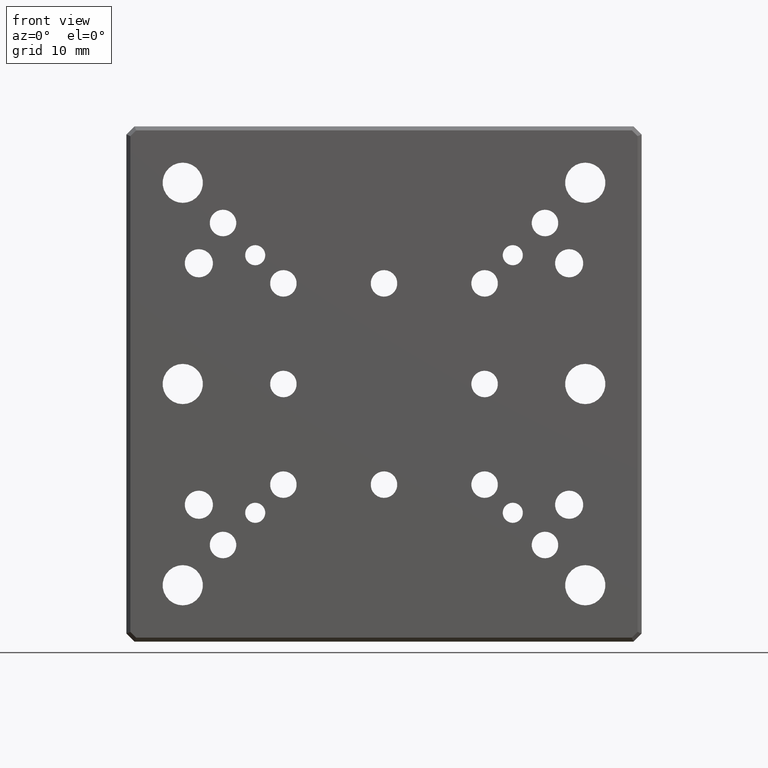
[diagram: clean part render]
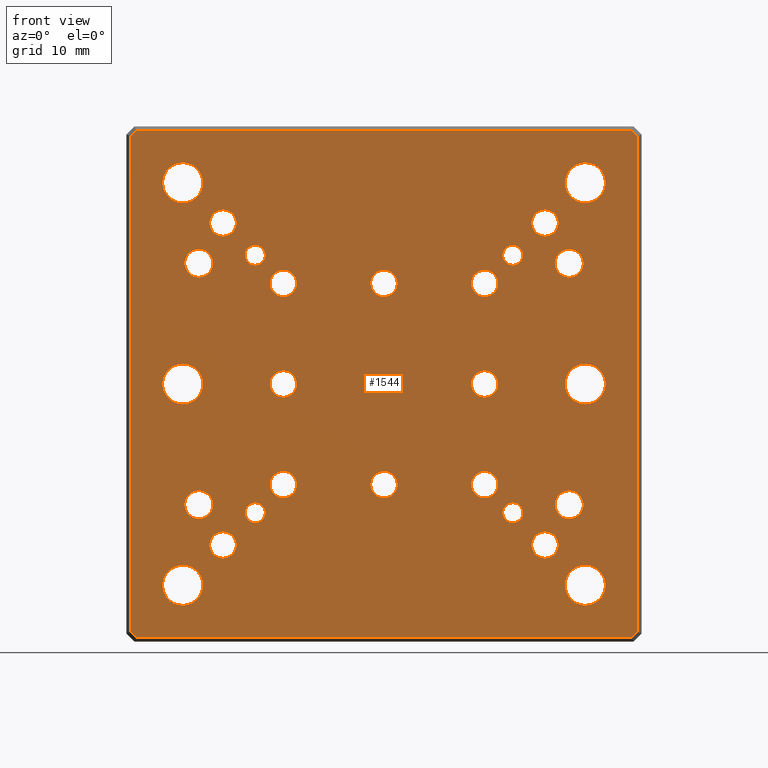
[diagram: same view with one face highlighted and labeled with its STEP entity id]
A machine part, front view. The second image highlights one B-rep face of the part: STEP entity #1544.
In plain terms, the highlighted planar face has unit normal (0, 1, 0).
Its self-contained STEP definition (entity closure, byte-faithful):
#1 = CIRCLE ( 'NONE', #1829, 1.249999999999997558 ) ;
#4 = VERTEX_POINT ( 'NONE', #191 ) ;
#13 = CARTESIAN_POINT ( 'NONE',  ( 12.50000000000000000, 0.000000000000000000, 12.50000000000000000 ) ) ;
#32 = CIRCLE ( 'NONE', #878, 1.649999999999998579 ) ;
#36 = CARTESIAN_POINT ( 'NONE',  ( 23.00000000000000711, 0.000000000000000000, 15.00000000000000178 ) ) ;
#42 = DIRECTION ( 'NONE',  ( -0.000000000000000000, 1.000000000000000000, -0.000000000000000000 ) ) ;
#59 = EDGE_LOOP ( 'NONE', ( #1337 ) ) ;
#61 = VERTEX_POINT ( 'NONE', #1130 ) ;
#68 = CARTESIAN_POINT ( 'NONE',  ( 0.000000000000000000, 0.000000000000000000, 31.50000000000002132 ) ) ;
#86 = AXIS2_PLACEMENT_3D ( 'NONE', #594, #1107, #1825 ) ;
#92 = CARTESIAN_POINT ( 'NONE',  ( 30.79289321881346098, 0.000000000000000000, -31.50000000000001421 ) ) ;
#94 = EDGE_CURVE ( 'NONE', #182, #182, #216, .T. ) ;
#100 = CARTESIAN_POINT ( 'NONE',  ( 12.49999999999999822, 0.000000000000000000, 0.000000000000000000 ) ) ;
#115 = DIRECTION ( 'NONE',  ( -0.000000000000000000, 1.000000000000000000, -0.000000000000000000 ) ) ;
#122 = DIRECTION ( 'NONE',  ( 0.000000000000000000, 1.000000000000000000, 0.000000000000000000 ) ) ;
#123 = CIRCLE ( 'NONE', #1515, 2.499999999999998668 ) ;
#126 = CARTESIAN_POINT ( 'NONE',  ( 24.99999999999999289, 0.000000000000000000, -24.99999999999999645 ) ) ;
#132 = EDGE_CURVE ( 'NONE', #490, #2126, #1866, .T. ) ;
#165 = VERTEX_POINT ( 'NONE', #545 ) ;
#182 = VERTEX_POINT ( 'NONE', #2104 ) ;
#184 = DIRECTION ( 'NONE',  ( 0.000000000000000000, 0.000000000000000000, 1.000000000000000000 ) ) ;
#191 = CARTESIAN_POINT ( 'NONE',  ( -12.50000000000000000, 0.000000000000000000, 14.14999999999999858 ) ) ;
#195 = EDGE_LOOP ( 'NONE', ( #437 ) ) ;
#196 = VERTEX_POINT ( 'NONE', #729 ) ;
#208 = ORIENTED_EDGE ( 'NONE', *, *, #1801, .T. ) ;
#212 = AXIS2_PLACEMENT_3D ( 'NONE', #1908, #1932, #1739 ) ;
#216 = CIRCLE ( 'NONE', #1416, 1.249999999999997558 ) ;
#227 = EDGE_LOOP ( 'NONE', ( #2073 ) ) ;
#234 = VERTEX_POINT ( 'NONE', #1462 ) ;
#250 = DIRECTION ( 'NONE',  ( -0.000000000000000000, 1.000000000000000000, -0.000000000000000000 ) ) ;
#258 = FACE_BOUND ( 'NONE', #850, .T. ) ;
#263 = ORIENTED_EDGE ( 'NONE', *, *, #1556, .T. ) ;
#265 = FACE_BOUND ( 'NONE', #1520, .T. ) ;
#274 = DIRECTION ( 'NONE',  ( -0.7071067811865500152, 0.000000000000000000, 0.7071067811865451302 ) ) ;
#291 = AXIS2_PLACEMENT_3D ( 'NONE', #964, #1315, #1506 ) ;
#292 = FACE_BOUND ( 'NONE', #2268, .T. ) ;
#296 = DIRECTION ( 'NONE',  ( -2.168404344971008868E-16, 0.000000000000000000, -1.000000000000000000 ) ) ;
#304 = AXIS2_PLACEMENT_3D ( 'NONE', #1077, #2178, #1283 ) ;
#307 = CARTESIAN_POINT ( 'NONE',  ( -25.00000000000000711, 0.000000000000000000, -24.99999999999999645 ) ) ;
#315 = DIRECTION ( 'NONE',  ( -0.000000000000000000, 1.000000000000000000, -0.000000000000000000 ) ) ;
#318 = EDGE_LOOP ( 'NONE', ( #2272 ) ) ;
#320 = CARTESIAN_POINT ( 'NONE',  ( 24.99999999999999645, 0.000000000000000000, 2.500000000000002220 ) ) ;
#324 = CARTESIAN_POINT ( 'NONE',  ( 31.50000000000001421, 0.000000000000000000, -30.79289321881346808 ) ) ;
#331 = VERTEX_POINT ( 'NONE', #879 ) ;
#343 = CARTESIAN_POINT ( 'NONE',  ( 25.00000000000000000, 0.000000000000000000, 27.50000000000000355 ) ) ;
#363 = DIRECTION ( 'NONE',  ( 0.000000000000000000, 0.000000000000000000, 1.000000000000000000 ) ) ;
#370 = EDGE_LOOP ( 'NONE', ( #263 ) ) ;
#380 = DIRECTION ( 'NONE',  ( 1.000000000000000000, 0.000000000000000000, -1.084202172485504434E-16 ) ) ;
#384 = CARTESIAN_POINT ( 'NONE',  ( 20.00000000000000000, 0.000000000000000000, 21.64999999999999858 ) ) ;
#391 = EDGE_CURVE ( 'NONE', #2197, #2197, #765, .T. ) ;
#413 = CIRCLE ( 'NONE', #2088, 2.499999999999998668 ) ;
#421 = AXIS2_PLACEMENT_3D ( 'NONE', #1678, #122, #831 ) ;
#437 = ORIENTED_EDGE ( 'NONE', *, *, #1211, .T. ) ;
#440 = FACE_BOUND ( 'NONE', #712, .T. ) ;
#444 = DIRECTION ( 'NONE',  ( 0.000000000000000000, 0.000000000000000000, 1.000000000000000000 ) ) ;
#449 = EDGE_CURVE ( 'NONE', #1735, #2156, #1079, .T. ) ;
#452 = CARTESIAN_POINT ( 'NONE',  ( 19.99999999999999289, 0.000000000000000000, -20.00000000000000000 ) ) ;
#455 = CIRCLE ( 'NONE', #86, 1.750000000000011990 ) ;
#458 = FACE_BOUND ( 'NONE', #2286, .T. ) ;
#468 = EDGE_CURVE ( 'NONE', #1301, #1301, #1555, .T. ) ;
#470 = FACE_BOUND ( 'NONE', #1435, .T. ) ;
#484 = CARTESIAN_POINT ( 'NONE',  ( 12.49999999999999645, 0.000000000000000000, -12.50000000000000000 ) ) ;
#487 = DIRECTION ( 'NONE',  ( 0.000000000000000000, 0.000000000000000000, 1.000000000000000000 ) ) ;
#490 = VERTEX_POINT ( 'NONE', #904 ) ;
#493 = VECTOR ( 'NONE', #1851, 1000.000000000000000 ) ;
#513 = EDGE_CURVE ( 'NONE', #196, #196, #1734, .T. ) ;
#527 = CARTESIAN_POINT ( 'NONE',  ( -31.50000000000001421, 0.000000000000000000, -30.79289321881343611 ) ) ;
#534 = VERTEX_POINT ( 'NONE', #1417 ) ;
#545 = CARTESIAN_POINT ( 'NONE',  ( -25.00000000000000711, 0.000000000000000000, -22.50000000000000000 ) ) ;
#547 = VECTOR ( 'NONE', #296, 1000.000000000000000 ) ;
#548 = ORIENTED_EDGE ( 'NONE', *, *, #1322, .T. ) ;
#559 = EDGE_CURVE ( 'NONE', #2156, #2236, #1021, .T. ) ;
#571 = CARTESIAN_POINT ( 'NONE',  ( 24.99999999999999645, 0.000000000000000000, 3.469446951953614189E-15 ) ) ;
#594 = CARTESIAN_POINT ( 'NONE',  ( 23.00000000000000000, 0.000000000000000000, -15.00000000000000000 ) ) ;
#600 = LINE ( 'NONE', #2023, #855 ) ;
#604 = CIRCLE ( 'NONE', #973, 2.499999999999998668 ) ;
#605 = DIRECTION ( 'NONE',  ( 0.000000000000000000, 0.000000000000000000, 1.000000000000000000 ) ) ;
#617 = CIRCLE ( 'NONE', #906, 1.649999999999998579 ) ;
#619 = EDGE_CURVE ( 'NONE', #2185, #2185, #1234, .T. ) ;
#630 = CIRCLE ( 'NONE', #1042, 1.649999999999998579 ) ;
#636 = FACE_BOUND ( 'NONE', #1285, .T. ) ;
#644 = CIRCLE ( 'NONE', #1612, 1.649999999999998579 ) ;
#647 = FACE_BOUND ( 'NONE', #1613, .T. ) ;
#649 = LINE ( 'NONE', #801, #1054 ) ;
#654 = CARTESIAN_POINT ( 'NONE',  ( 30.64644660940673049, 0.000000000000000000, 31.64644660940674115 ) ) ;
#657 = EDGE_LOOP ( 'NONE', ( #977 ) ) ;
#664 = VERTEX_POINT ( 'NONE', #1279 ) ;
#665 = EDGE_LOOP ( 'NONE', ( #779 ) ) ;
#672 = CARTESIAN_POINT ( 'NONE',  ( -3.469446951953614189E-15, 0.000000000000000000, -12.50000000000000000 ) ) ;
#680 = VERTEX_POINT ( 'NONE', #1404 ) ;
#685 = EDGE_CURVE ( 'NONE', #1111, #1111, #1005, .T. ) ;
#699 = DIRECTION ( 'NONE',  ( 0.000000000000000000, 0.000000000000000000, 1.000000000000000000 ) ) ;
#711 = VERTEX_POINT ( 'NONE', #1770 ) ;
#712 = EDGE_LOOP ( 'NONE', ( #548 ) ) ;
#717 = VERTEX_POINT ( 'NONE', #324 ) ;
#720 = EDGE_CURVE ( 'NONE', #947, #947, #630, .T. ) ;
#727 = AXIS2_PLACEMENT_3D ( 'NONE', #36, #1796, #363 ) ;
#729 = CARTESIAN_POINT ( 'NONE',  ( 24.99999999999999289, 0.000000000000000000, -22.50000000000000000 ) ) ;
#752 = CARTESIAN_POINT ( 'NONE',  ( -3.415236843329340545E-15, 0.000000000000000000, -31.50000000000001421 ) ) ;
#758 = ORIENTED_EDGE ( 'NONE', *, *, #966, .T. ) ;
#761 = DIRECTION ( 'NONE',  ( -0.000000000000000000, 1.000000000000000000, -0.000000000000000000 ) ) ;
#765 = CIRCLE ( 'NONE', #2042, 1.649999999999998579 ) ;
#770 = ORIENTED_EDGE ( 'NONE', *, *, #1428, .T. ) ;
#776 = CARTESIAN_POINT ( 'NONE',  ( -23.00000000000000000, 0.000000000000000000, -14.99999999999999822 ) ) ;
#779 = ORIENTED_EDGE ( 'NONE', *, *, #720, .T. ) ;
#781 = DIRECTION ( 'NONE',  ( -0.000000000000000000, 1.000000000000000000, -0.000000000000000000 ) ) ;
#801 = CARTESIAN_POINT ( 'NONE',  ( 31.64644660940674115, 0.000000000000000000, -30.64644660940674470 ) ) ;
#806 = AXIS2_PLACEMENT_3D ( 'NONE', #1052, #1007, #1716 ) ;
#812 = FACE_BOUND ( 'NONE', #1804, .T. ) ;
#831 = DIRECTION ( 'NONE',  ( 0.000000000000000000, -0.000000000000000000, 1.000000000000000000 ) ) ;
#849 = ORIENTED_EDGE ( 'NONE', *, *, #1491, .T. ) ;
#850 = EDGE_LOOP ( 'NONE', ( #1969 ) ) ;
#855 = VECTOR ( 'NONE', #1137, 1000.000000000000000 ) ;
#858 = CARTESIAN_POINT ( 'NONE',  ( 16.00000000000000000, 0.000000000000000000, -16.00000000000000000 ) ) ;
#859 = CARTESIAN_POINT ( 'NONE',  ( -16.00000000000000000, 0.000000000000000000, -14.75000000000000178 ) ) ;
#868 = CARTESIAN_POINT ( 'NONE',  ( 16.00000000000001066, 0.000000000000000000, 17.24999999999999645 ) ) ;
#874 = CARTESIAN_POINT ( 'NONE',  ( -12.50000000000000178, 0.000000000000000000, 0.000000000000000000 ) ) ;
#878 = AXIS2_PLACEMENT_3D ( 'NONE', #1243, #1050, #1621 ) ;
#879 = CARTESIAN_POINT ( 'NONE',  ( 19.99999999999999289, 0.000000000000000000, -18.35000000000000142 ) ) ;
#880 = EDGE_CURVE ( 'NONE', #1827, #1827, #32, .T. ) ;
#891 = EDGE_LOOP ( 'NONE', ( #849 ) ) ;
#900 = CARTESIAN_POINT ( 'NONE',  ( 12.50000000000000000, 0.000000000000000000, 14.14999999999999858 ) ) ;
#904 = CARTESIAN_POINT ( 'NONE',  ( 31.50000000000002842, 0.000000000000000000, 30.79289321881345032 ) ) ;
#906 = AXIS2_PLACEMENT_3D ( 'NONE', #1904, #1940, #2117 ) ;
#941 = DIRECTION ( 'NONE',  ( 0.000000000000000000, 0.000000000000000000, 1.000000000000000000 ) ) ;
#947 = VERTEX_POINT ( 'NONE', #2009 ) ;
#960 = FACE_BOUND ( 'NONE', #1202, .T. ) ;
#961 = EDGE_CURVE ( 'NONE', #664, #664, #413, .T. ) ;
#964 = CARTESIAN_POINT ( 'NONE',  ( 25.00000000000000000, 0.000000000000000000, 25.00000000000000355 ) ) ;
#966 = EDGE_CURVE ( 'NONE', #1302, #1302, #2310, .T. ) ;
#970 = CARTESIAN_POINT ( 'NONE',  ( -30.79289321881344321, 0.000000000000000000, 31.50000000000002132 ) ) ;
#971 = EDGE_CURVE ( 'NONE', #1059, #1059, #1311, .T. ) ;
#973 = AXIS2_PLACEMENT_3D ( 'NONE', #571, #1978, #1095 ) ;
#974 = FACE_BOUND ( 'NONE', #227, .T. ) ;
#977 = ORIENTED_EDGE ( 'NONE', *, *, #94, .T. ) ;
#986 = FACE_BOUND ( 'NONE', #1715, .T. ) ;
#987 = ORIENTED_EDGE ( 'NONE', *, *, #2214, .T. ) ;
#993 = CIRCLE ( 'NONE', #212, 1.649999999999998579 ) ;
#1005 = CIRCLE ( 'NONE', #2313, 1.649999999999998579 ) ;
#1007 = DIRECTION ( 'NONE',  ( -0.000000000000000000, 1.000000000000000000, -0.000000000000000000 ) ) ;
#1009 = FACE_OUTER_BOUND ( 'NONE', #1074, .T. ) ;
#1014 = DIRECTION ( 'NONE',  ( -0.000000000000000000, 1.000000000000000000, -0.000000000000000000 ) ) ;
#1021 = LINE ( 'NONE', #1732, #547 ) ;
#1026 = DIRECTION ( 'NONE',  ( 0.000000000000000000, 0.000000000000000000, 1.000000000000000000 ) ) ;
#1042 = AXIS2_PLACEMENT_3D ( 'NONE', #672, #1014, #487 ) ;
#1047 = CARTESIAN_POINT ( 'NONE',  ( 0.000000000000000000, 0.000000000000000000, 14.14999999999999858 ) ) ;
#1050 = DIRECTION ( 'NONE',  ( -0.000000000000000000, 1.000000000000000000, -0.000000000000000000 ) ) ;
#1052 = CARTESIAN_POINT ( 'NONE',  ( 0.000000000000000000, 0.000000000000000000, 12.50000000000000000 ) ) ;
#1054 = VECTOR ( 'NONE', #1210, 1000.000000000000000 ) ;
#1057 = DIRECTION ( 'NONE',  ( 0.000000000000000000, 0.000000000000000000, 1.000000000000000000 ) ) ;
#1059 = VERTEX_POINT ( 'NONE', #343 ) ;
#1074 = EDGE_LOOP ( 'NONE', ( #1843, #1907, #1899, #2279, #987, #2209, #1176, #2024 ) ) ;
#1077 = CARTESIAN_POINT ( 'NONE',  ( -12.50000000000000000, 0.000000000000000000, 12.50000000000000000 ) ) ;
#1079 = LINE ( 'NONE', #1091, #2154 ) ;
#1084 = CARTESIAN_POINT ( 'NONE',  ( 16.00000000000001066, 0.000000000000000000, 16.00000000000000000 ) ) ;
#1091 = CARTESIAN_POINT ( 'NONE',  ( -31.64644660940671983, 0.000000000000000000, 30.64644660940674470 ) ) ;
#1094 = VECTOR ( 'NONE', #380, 1000.000000000000000 ) ;
#1095 = DIRECTION ( 'NONE',  ( 0.000000000000000000, 0.000000000000000000, 1.000000000000000000 ) ) ;
#1099 = CARTESIAN_POINT ( 'NONE',  ( -23.00000000000000000, 0.000000000000000000, -13.24999999999998579 ) ) ;
#1107 = DIRECTION ( 'NONE',  ( -0.000000000000000000, 1.000000000000000000, -0.000000000000000000 ) ) ;
#1111 = VERTEX_POINT ( 'NONE', #384 ) ;
#1120 = CARTESIAN_POINT ( 'NONE',  ( -12.50000000000000178, 0.000000000000000000, 1.649999999999998579 ) ) ;
#1130 = CARTESIAN_POINT ( 'NONE',  ( -15.99999999999999645, 0.000000000000000000, 17.25000000000000000 ) ) ;
#1132 = DIRECTION ( 'NONE',  ( 0.000000000000000000, 0.000000000000000000, 1.000000000000000000 ) ) ;
#1137 = DIRECTION ( 'NONE',  ( 2.168404344971008868E-16, 0.000000000000000000, 1.000000000000000000 ) ) ;
#1141 = VERTEX_POINT ( 'NONE', #1120 ) ;
#1143 = FACE_BOUND ( 'NONE', #59, .T. ) ;
#1144 = EDGE_CURVE ( 'NONE', #165, #165, #123, .T. ) ;
#1157 = EDGE_CURVE ( 'NONE', #711, #711, #1325, .T. ) ;
#1163 = FACE_BOUND ( 'NONE', #370, .T. ) ;
#1174 = FACE_BOUND ( 'NONE', #1399, .T. ) ;
#1176 = ORIENTED_EDGE ( 'NONE', *, *, #2061, .T. ) ;
#1184 = ORIENTED_EDGE ( 'NONE', *, *, #391, .T. ) ;
#1197 = EDGE_CURVE ( 'NONE', #2200, #717, #649, .T. ) ;
#1202 = EDGE_LOOP ( 'NONE', ( #1992 ) ) ;
#1210 = DIRECTION ( 'NONE',  ( 0.7071067811865524577, 0.000000000000000000, 0.7071067811865426878 ) ) ;
#1211 = EDGE_CURVE ( 'NONE', #331, #331, #644, .T. ) ;
#1218 = ORIENTED_EDGE ( 'NONE', *, *, #468, .T. ) ;
#1223 = ORIENTED_EDGE ( 'NONE', *, *, #2107, .T. ) ;
#1225 = VERTEX_POINT ( 'NONE', #1047 ) ;
#1234 = CIRCLE ( 'NONE', #2205, 1.649999999999998579 ) ;
#1243 = CARTESIAN_POINT ( 'NONE',  ( -20.00000000000000711, 0.000000000000000000, -20.00000000000000000 ) ) ;
#1247 = AXIS2_PLACEMENT_3D ( 'NONE', #1663, #250, #941 ) ;
#1250 = DIRECTION ( 'NONE',  ( -0.000000000000000000, 1.000000000000000000, -0.000000000000000000 ) ) ;
#1257 = DIRECTION ( 'NONE',  ( 0.7071067811865474617, 0.000000000000000000, -0.7071067811865474617 ) ) ;
#1264 = VECTOR ( 'NONE', #274, 1000.000000000000114 ) ;
#1279 = CARTESIAN_POINT ( 'NONE',  ( -25.00000000000000355, 0.000000000000000000, 2.500000000000002220 ) ) ;
#1283 = DIRECTION ( 'NONE',  ( 0.000000000000000000, 0.000000000000000000, 1.000000000000000000 ) ) ;
#1285 = EDGE_LOOP ( 'NONE', ( #1741 ) ) ;
#1301 = VERTEX_POINT ( 'NONE', #2208 ) ;
#1302 = VERTEX_POINT ( 'NONE', #1099 ) ;
#1303 = DIRECTION ( 'NONE',  ( -0.000000000000000000, 1.000000000000000000, -0.000000000000000000 ) ) ;
#1311 = CIRCLE ( 'NONE', #291, 2.499999999999998668 ) ;
#1315 = DIRECTION ( 'NONE',  ( -0.000000000000000000, 1.000000000000000000, -0.000000000000000000 ) ) ;
#1319 = AXIS2_PLACEMENT_3D ( 'NONE', #100, #1360, #605 ) ;
#1322 = EDGE_CURVE ( 'NONE', #4, #4, #1797, .T. ) ;
#1324 = FACE_BOUND ( 'NONE', #2159, .T. ) ;
#1325 = CIRCLE ( 'NONE', #1658, 1.750000000000013767 ) ;
#1328 = CARTESIAN_POINT ( 'NONE',  ( -25.00000000000000355, 0.000000000000000000, 3.469446951953614189E-15 ) ) ;
#1331 = DIRECTION ( 'NONE',  ( 0.000000000000000000, 0.000000000000000000, 1.000000000000000000 ) ) ;
#1336 = FACE_BOUND ( 'NONE', #318, .T. ) ;
#1337 = ORIENTED_EDGE ( 'NONE', *, *, #2290, .T. ) ;
#1340 = AXIS2_PLACEMENT_3D ( 'NONE', #2094, #315, #1026 ) ;
#1348 = FACE_BOUND ( 'NONE', #2181, .T. ) ;
#1351 = DIRECTION ( 'NONE',  ( 0.000000000000000000, 0.000000000000000000, 1.000000000000000000 ) ) ;
#1360 = DIRECTION ( 'NONE',  ( -0.000000000000000000, 1.000000000000000000, -0.000000000000000000 ) ) ;
#1362 = DIRECTION ( 'NONE',  ( -0.000000000000000000, 1.000000000000000000, -0.000000000000000000 ) ) ;
#1364 = CARTESIAN_POINT ( 'NONE',  ( -31.50000000000000000, 0.000000000000000000, 30.79289321881346453 ) ) ;
#1371 = VECTOR ( 'NONE', #1257, 1000.000000000000114 ) ;
#1387 = EDGE_CURVE ( 'NONE', #2134, #2200, #2194, .T. ) ;
#1394 = EDGE_CURVE ( 'NONE', #534, #534, #455, .T. ) ;
#1399 = EDGE_LOOP ( 'NONE', ( #1184 ) ) ;
#1404 = CARTESIAN_POINT ( 'NONE',  ( -20.00000000000000000, 0.000000000000000000, 21.64999999999999858 ) ) ;
#1415 = DIRECTION ( 'NONE',  ( -0.000000000000000000, 1.000000000000000000, -0.000000000000000000 ) ) ;
#1416 = AXIS2_PLACEMENT_3D ( 'NONE', #858, #1415, #699 ) ;
#1417 = CARTESIAN_POINT ( 'NONE',  ( 23.00000000000000000, 0.000000000000000000, -13.24999999999998757 ) ) ;
#1428 = EDGE_CURVE ( 'NONE', #1440, #1440, #1, .T. ) ;
#1435 = EDGE_LOOP ( 'NONE', ( #1671 ) ) ;
#1440 = VERTEX_POINT ( 'NONE', #868 ) ;
#1444 = DIRECTION ( 'NONE',  ( -0.000000000000000000, 1.000000000000000000, -0.000000000000000000 ) ) ;
#1457 = DIRECTION ( 'NONE',  ( 0.000000000000000000, 0.000000000000000000, 1.000000000000000000 ) ) ;
#1462 = CARTESIAN_POINT ( 'NONE',  ( -12.50000000000000355, 0.000000000000000000, -10.85000000000000142 ) ) ;
#1491 = EDGE_CURVE ( 'NONE', #1925, #1925, #604, .T. ) ;
#1506 = DIRECTION ( 'NONE',  ( 0.000000000000000000, 0.000000000000000000, 1.000000000000000000 ) ) ;
#1511 = EDGE_LOOP ( 'NONE', ( #1783 ) ) ;
#1515 = AXIS2_PLACEMENT_3D ( 'NONE', #307, #1914, #1540 ) ;
#1520 = EDGE_LOOP ( 'NONE', ( #2143 ) ) ;
#1535 = CARTESIAN_POINT ( 'NONE',  ( -30.79289321881343966, 0.000000000000000000, -31.50000000000000711 ) ) ;
#1540 = DIRECTION ( 'NONE',  ( 0.000000000000000000, 0.000000000000000000, 1.000000000000000000 ) ) ;
#1541 = AXIS2_PLACEMENT_3D ( 'NONE', #874, #1775, #184 ) ;
#1544 = ADVANCED_FACE ( 'NONE', ( #458, #2229, #647, #292, #1550, #2240, #265, #1324, #440, #1143, #636, #1174, #1163, #1348, #1847, #1869, #812, #470, #1687, #974, #1336, #986, #258, #2253, #960, #1718, #1009 ), #1699, .F. ) ;
#1550 = FACE_BOUND ( 'NONE', #2086, .T. ) ;
#1553 = CARTESIAN_POINT ( 'NONE',  ( -23.00000000000000000, 0.000000000000000000, 15.00000000000000178 ) ) ;
#1555 = CIRCLE ( 'NONE', #727, 1.750000000000013767 ) ;
#1556 = EDGE_CURVE ( 'NONE', #1937, #1937, #2211, .T. ) ;
#1563 = CARTESIAN_POINT ( 'NONE',  ( -25.00000000000000000, 0.000000000000000000, 27.50000000000000355 ) ) ;
#1612 = AXIS2_PLACEMENT_3D ( 'NONE', #452, #2244, #1702 ) ;
#1613 = EDGE_LOOP ( 'NONE', ( #770 ) ) ;
#1621 = DIRECTION ( 'NONE',  ( 0.000000000000000000, 0.000000000000000000, 1.000000000000000000 ) ) ;
#1623 = EDGE_CURVE ( 'NONE', #1966, #1966, #2135, .T. ) ;
#1653 = LINE ( 'NONE', #1807, #1371 ) ;
#1658 = AXIS2_PLACEMENT_3D ( 'NONE', #1553, #1362, #1351 ) ;
#1663 = CARTESIAN_POINT ( 'NONE',  ( -15.99999999999999645, 0.000000000000000000, 16.00000000000000000 ) ) ;
#1670 = CIRCLE ( 'NONE', #1340, 1.249999999999999334 ) ;
#1671 = ORIENTED_EDGE ( 'NONE', *, *, #1157, .T. ) ;
#1676 = ORIENTED_EDGE ( 'NONE', *, *, #1623, .T. ) ;
#1678 = CARTESIAN_POINT ( 'NONE',  ( 0.000000000000000000, 0.000000000000000000, 0.000000000000000000 ) ) ;
#1683 = CARTESIAN_POINT ( 'NONE',  ( 20.00000000000000000, 0.000000000000000000, 20.00000000000000000 ) ) ;
#1687 = FACE_BOUND ( 'NONE', #1833, .T. ) ;
#1699 = PLANE ( 'NONE',  #421 ) ;
#1702 = DIRECTION ( 'NONE',  ( 0.000000000000000000, 0.000000000000000000, 1.000000000000000000 ) ) ;
#1711 = AXIS2_PLACEMENT_3D ( 'NONE', #776, #42, #2032 ) ;
#1715 = EDGE_LOOP ( 'NONE', ( #2196 ) ) ;
#1716 = DIRECTION ( 'NONE',  ( 0.000000000000000000, 0.000000000000000000, 1.000000000000000000 ) ) ;
#1717 = AXIS2_PLACEMENT_3D ( 'NONE', #1935, #1250, #1057 ) ;
#1718 = FACE_BOUND ( 'NONE', #891, .T. ) ;
#1732 = CARTESIAN_POINT ( 'NONE',  ( -31.50000000000000711, 0.000000000000000000, 6.830473686658679512E-15 ) ) ;
#1734 = CIRCLE ( 'NONE', #1881, 2.499999999999998668 ) ;
#1735 = VERTEX_POINT ( 'NONE', #970 ) ;
#1739 = DIRECTION ( 'NONE',  ( 0.000000000000000000, 0.000000000000000000, 1.000000000000000000 ) ) ;
#1741 = ORIENTED_EDGE ( 'NONE', *, *, #619, .T. ) ;
#1752 = VERTEX_POINT ( 'NONE', #859 ) ;
#1770 = CARTESIAN_POINT ( 'NONE',  ( -23.00000000000000000, 0.000000000000000000, 16.75000000000001421 ) ) ;
#1775 = DIRECTION ( 'NONE',  ( -0.000000000000000000, 1.000000000000000000, -0.000000000000000000 ) ) ;
#1782 = EDGE_CURVE ( 'NONE', #680, #680, #993, .T. ) ;
#1783 = ORIENTED_EDGE ( 'NONE', *, *, #1786, .T. ) ;
#1786 = EDGE_CURVE ( 'NONE', #1225, #1225, #2190, .T. ) ;
#1794 = ORIENTED_EDGE ( 'NONE', *, *, #2039, .T. ) ;
#1796 = DIRECTION ( 'NONE',  ( -0.000000000000000000, 1.000000000000000000, -0.000000000000000000 ) ) ;
#1797 = CIRCLE ( 'NONE', #304, 1.649999999999998579 ) ;
#1801 = EDGE_CURVE ( 'NONE', #1752, #1752, #1670, .T. ) ;
#1804 = EDGE_LOOP ( 'NONE', ( #758 ) ) ;
#1807 = CARTESIAN_POINT ( 'NONE',  ( -30.64644660940671983, 0.000000000000000000, -31.64644660940672694 ) ) ;
#1825 = DIRECTION ( 'NONE',  ( 0.000000000000000000, 0.000000000000000000, 1.000000000000000000 ) ) ;
#1827 = VERTEX_POINT ( 'NONE', #1994 ) ;
#1829 = AXIS2_PLACEMENT_3D ( 'NONE', #1084, #761, #1132 ) ;
#1833 = EDGE_LOOP ( 'NONE', ( #1218 ) ) ;
#1842 = DIRECTION ( 'NONE',  ( 0.000000000000000000, 0.000000000000000000, 1.000000000000000000 ) ) ;
#1843 = ORIENTED_EDGE ( 'NONE', *, *, #559, .T. ) ;
#1847 = FACE_BOUND ( 'NONE', #1511, .T. ) ;
#1851 = DIRECTION ( 'NONE',  ( -1.000000000000000000, 0.000000000000000000, 0.000000000000000000 ) ) ;
#1863 = LINE ( 'NONE', #68, #493 ) ;
#1866 = LINE ( 'NONE', #654, #1264 ) ;
#1869 = FACE_BOUND ( 'NONE', #665, .T. ) ;
#1881 = AXIS2_PLACEMENT_3D ( 'NONE', #126, #2256, #1903 ) ;
#1899 = ORIENTED_EDGE ( 'NONE', *, *, #1387, .T. ) ;
#1901 = CIRCLE ( 'NONE', #1541, 1.649999999999998579 ) ;
#1903 = DIRECTION ( 'NONE',  ( 0.000000000000000000, 0.000000000000000000, 1.000000000000000000 ) ) ;
#1904 = CARTESIAN_POINT ( 'NONE',  ( -12.50000000000000355, 0.000000000000000000, -12.50000000000000000 ) ) ;
#1907 = ORIENTED_EDGE ( 'NONE', *, *, #1993, .T. ) ;
#1908 = CARTESIAN_POINT ( 'NONE',  ( -20.00000000000000000, 0.000000000000000000, 20.00000000000000000 ) ) ;
#1914 = DIRECTION ( 'NONE',  ( -0.000000000000000000, 1.000000000000000000, -0.000000000000000000 ) ) ;
#1925 = VERTEX_POINT ( 'NONE', #320 ) ;
#1932 = DIRECTION ( 'NONE',  ( -0.000000000000000000, 1.000000000000000000, -0.000000000000000000 ) ) ;
#1935 = CARTESIAN_POINT ( 'NONE',  ( -25.00000000000000000, 0.000000000000000000, 25.00000000000000355 ) ) ;
#1937 = VERTEX_POINT ( 'NONE', #2148 ) ;
#1940 = DIRECTION ( 'NONE',  ( -0.000000000000000000, 1.000000000000000000, -0.000000000000000000 ) ) ;
#1966 = VERTEX_POINT ( 'NONE', #1563 ) ;
#1969 = ORIENTED_EDGE ( 'NONE', *, *, #961, .T. ) ;
#1978 = DIRECTION ( 'NONE',  ( -0.000000000000000000, 1.000000000000000000, -0.000000000000000000 ) ) ;
#1981 = CARTESIAN_POINT ( 'NONE',  ( 12.49999999999999645, 0.000000000000000000, -10.85000000000000142 ) ) ;
#1992 = ORIENTED_EDGE ( 'NONE', *, *, #971, .T. ) ;
#1993 = EDGE_CURVE ( 'NONE', #2236, #2134, #1653, .T. ) ;
#1994 = CARTESIAN_POINT ( 'NONE',  ( -20.00000000000000711, 0.000000000000000000, -18.35000000000000142 ) ) ;
#2009 = CARTESIAN_POINT ( 'NONE',  ( -3.469446951953614189E-15, 0.000000000000000000, -10.85000000000000142 ) ) ;
#2013 = DIRECTION ( 'NONE',  ( -0.7071067811865474617, 0.000000000000000000, -0.7071067811865474617 ) ) ;
#2023 = CARTESIAN_POINT ( 'NONE',  ( 31.50000000000002132, 0.000000000000000000, -6.830473686658682667E-15 ) ) ;
#2024 = ORIENTED_EDGE ( 'NONE', *, *, #449, .T. ) ;
#2032 = DIRECTION ( 'NONE',  ( 0.000000000000000000, 0.000000000000000000, 1.000000000000000000 ) ) ;
#2039 = EDGE_CURVE ( 'NONE', #1141, #1141, #1901, .T. ) ;
#2042 = AXIS2_PLACEMENT_3D ( 'NONE', #13, #1444, #1457 ) ;
#2061 = EDGE_CURVE ( 'NONE', #2126, #1735, #1863, .T. ) ;
#2073 = ORIENTED_EDGE ( 'NONE', *, *, #1394, .T. ) ;
#2075 = EDGE_LOOP ( 'NONE', ( #1676 ) ) ;
#2086 = EDGE_LOOP ( 'NONE', ( #2248 ) ) ;
#2088 = AXIS2_PLACEMENT_3D ( 'NONE', #1328, #1303, #444 ) ;
#2094 = CARTESIAN_POINT ( 'NONE',  ( -16.00000000000000000, 0.000000000000000000, -16.00000000000000000 ) ) ;
#2098 = CIRCLE ( 'NONE', #1247, 1.250000000000001110 ) ;
#2103 = ORIENTED_EDGE ( 'NONE', *, *, #1782, .T. ) ;
#2104 = CARTESIAN_POINT ( 'NONE',  ( 16.00000000000000000, 0.000000000000000000, -14.75000000000000355 ) ) ;
#2107 = EDGE_CURVE ( 'NONE', #61, #61, #2098, .T. ) ;
#2117 = DIRECTION ( 'NONE',  ( 0.000000000000000000, 0.000000000000000000, 1.000000000000000000 ) ) ;
#2126 = VERTEX_POINT ( 'NONE', #2213 ) ;
#2134 = VERTEX_POINT ( 'NONE', #1535 ) ;
#2135 = CIRCLE ( 'NONE', #1717, 2.499999999999998668 ) ;
#2143 = ORIENTED_EDGE ( 'NONE', *, *, #685, .T. ) ;
#2148 = CARTESIAN_POINT ( 'NONE',  ( 12.49999999999999822, 0.000000000000000000, 1.649999999999998579 ) ) ;
#2154 = VECTOR ( 'NONE', #2013, 1000.000000000000114 ) ;
#2156 = VERTEX_POINT ( 'NONE', #1364 ) ;
#2159 = EDGE_LOOP ( 'NONE', ( #2103 ) ) ;
#2178 = DIRECTION ( 'NONE',  ( -0.000000000000000000, 1.000000000000000000, -0.000000000000000000 ) ) ;
#2181 = EDGE_LOOP ( 'NONE', ( #1794 ) ) ;
#2185 = VERTEX_POINT ( 'NONE', #1981 ) ;
#2190 = CIRCLE ( 'NONE', #806, 1.649999999999998579 ) ;
#2194 = LINE ( 'NONE', #752, #1094 ) ;
#2196 = ORIENTED_EDGE ( 'NONE', *, *, #513, .T. ) ;
#2197 = VERTEX_POINT ( 'NONE', #900 ) ;
#2200 = VERTEX_POINT ( 'NONE', #92 ) ;
#2205 = AXIS2_PLACEMENT_3D ( 'NONE', #484, #115, #1842 ) ;
#2208 = CARTESIAN_POINT ( 'NONE',  ( 23.00000000000000711, 0.000000000000000000, 16.75000000000001421 ) ) ;
#2209 = ORIENTED_EDGE ( 'NONE', *, *, #132, .T. ) ;
#2211 = CIRCLE ( 'NONE', #1319, 1.649999999999998579 ) ;
#2213 = CARTESIAN_POINT ( 'NONE',  ( 30.79289321881345032, 0.000000000000000000, 31.50000000000002132 ) ) ;
#2214 = EDGE_CURVE ( 'NONE', #717, #490, #600, .T. ) ;
#2229 = FACE_BOUND ( 'NONE', #657, .T. ) ;
#2236 = VERTEX_POINT ( 'NONE', #527 ) ;
#2240 = FACE_BOUND ( 'NONE', #195, .T. ) ;
#2244 = DIRECTION ( 'NONE',  ( -0.000000000000000000, 1.000000000000000000, -0.000000000000000000 ) ) ;
#2248 = ORIENTED_EDGE ( 'NONE', *, *, #880, .T. ) ;
#2253 = FACE_BOUND ( 'NONE', #2075, .T. ) ;
#2256 = DIRECTION ( 'NONE',  ( -0.000000000000000000, 1.000000000000000000, -0.000000000000000000 ) ) ;
#2268 = EDGE_LOOP ( 'NONE', ( #1223 ) ) ;
#2272 = ORIENTED_EDGE ( 'NONE', *, *, #1144, .T. ) ;
#2279 = ORIENTED_EDGE ( 'NONE', *, *, #1197, .T. ) ;
#2286 = EDGE_LOOP ( 'NONE', ( #208 ) ) ;
#2290 = EDGE_CURVE ( 'NONE', #234, #234, #617, .T. ) ;
#2310 = CIRCLE ( 'NONE', #1711, 1.750000000000011990 ) ;
#2313 = AXIS2_PLACEMENT_3D ( 'NONE', #1683, #781, #1331 ) ;